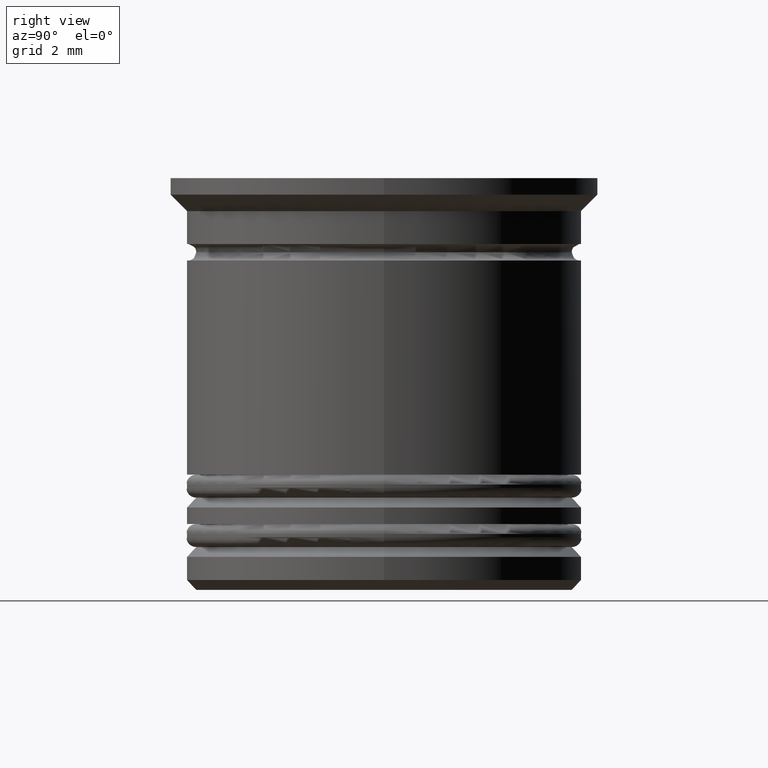
[diagram: clean part render]
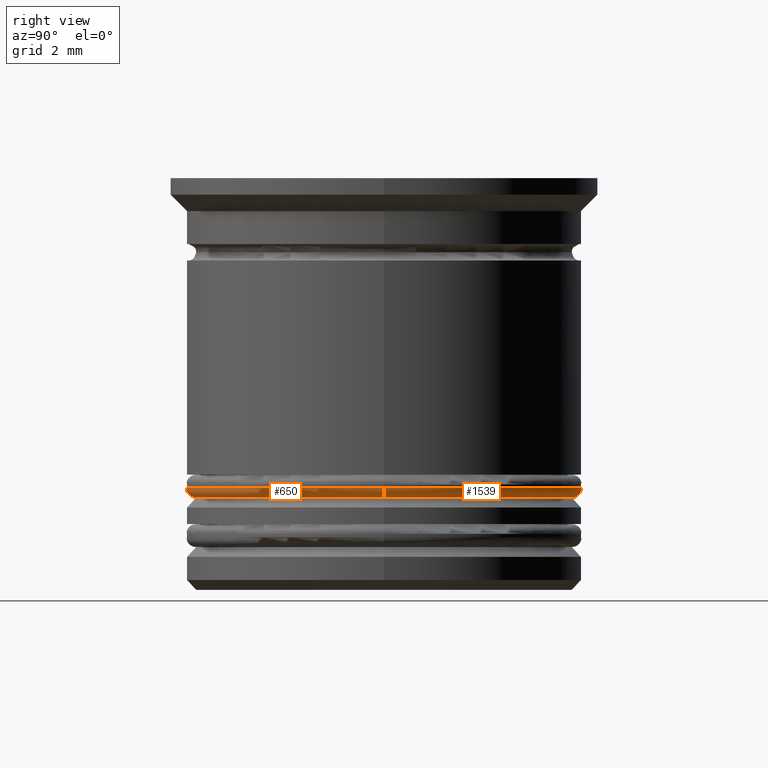
[diagram: same view with one multi-face feature highlighted, each face labeled with its STEP entity id]
A machine part, right view. The highlighted faces form ONE feature: a constant-radius fillet chain: 2 tangent blend faces with common blend radius 0.3 mm. The faces share edges in the B-rep.
Their STEP definitions:
[1] entity #1539 (Torus):
#36 = DIRECTION ( 'NONE',  ( 0.000000000000000000, 0.000000000000000000, -1.000000000000000000 ) ) ;
#83 = AXIS2_PLACEMENT_3D ( 'NONE', #1893, #1443, #679 ) ;
#119 = CIRCLE ( 'NONE', #1251, 5.700000000000002842 ) ;
#178 = CARTESIAN_POINT ( 'NONE',  ( 6.000000000000002665, 0.000000000000000000, -9.400000000000005684 ) ) ;
#191 = AXIS2_PLACEMENT_3D ( 'NONE', #1909, #1313, #36 ) ;
#253 = ORIENTED_EDGE ( 'NONE', *, *, #1435, .T. ) ;
#272 = EDGE_CURVE ( 'NONE', #1096, #541, #954, .T. ) ;
#303 = EDGE_LOOP ( 'NONE', ( #671, #253, #893, #568 ) ) ;
#321 = TOROIDAL_SURFACE ( 'NONE', #905, 5.700000000000002842, 0.2999999999999999889 ) ;
#365 = VERTEX_POINT ( 'NONE', #816 ) ;
#395 = DIRECTION ( 'NONE',  ( -0.000000000000000000, -0.000000000000000000, -1.000000000000000000 ) ) ;
#421 = DIRECTION ( 'NONE',  ( 0.000000000000000000, 0.000000000000000000, 1.000000000000000000 ) ) ;
#444 = VERTEX_POINT ( 'NONE', #1328 ) ;
#541 = VERTEX_POINT ( 'NONE', #1861 ) ;
#568 = ORIENTED_EDGE ( 'NONE', *, *, #1922, .F. ) ;
#660 = CARTESIAN_POINT ( 'NONE',  ( -5.700000000000002842, 6.980486755139916067E-16, -9.400000000000005684 ) ) ;
#671 = ORIENTED_EDGE ( 'NONE', *, *, #709, .F. ) ;
#679 = DIRECTION ( 'NONE',  ( 1.000000000000000000, 0.000000000000000000, 0.000000000000000000 ) ) ;
#709 = EDGE_CURVE ( 'NONE', #365, #444, #119, .T. ) ;
#719 = FACE_OUTER_BOUND ( 'NONE', #303, .T. ) ;
#816 = CARTESIAN_POINT ( 'NONE',  ( -5.700000000000002842, 7.164183775012019380E-16, -9.700000000000006395 ) ) ;
#870 = CIRCLE ( 'NONE', #1066, 0.2999999999999999334 ) ;
#893 = ORIENTED_EDGE ( 'NONE', *, *, #272, .F. ) ;
#905 = AXIS2_PLACEMENT_3D ( 'NONE', #1918, #421, #1948 ) ;
#954 = CIRCLE ( 'NONE', #83, 6.000000000000002665 ) ;
#1006 = DIRECTION ( 'NONE',  ( 1.000000000000000000, 0.000000000000000000, 0.000000000000000000 ) ) ;
#1066 = AXIS2_PLACEMENT_3D ( 'NONE', #660, #1134, #1872 ) ;
#1096 = VERTEX_POINT ( 'NONE', #178 ) ;
#1134 = DIRECTION ( 'NONE',  ( 1.224646799147353207E-16, 1.000000000000000000, -0.000000000000000000 ) ) ;
#1251 = AXIS2_PLACEMENT_3D ( 'NONE', #1468, #395, #1006 ) ;
#1313 = DIRECTION ( 'NONE',  ( 0.000000000000000000, -1.000000000000000000, 0.000000000000000000 ) ) ;
#1328 = CARTESIAN_POINT ( 'NONE',  ( 5.700000000000002842, 0.000000000000000000, -9.700000000000006395 ) ) ;
#1330 = CIRCLE ( 'NONE', #191, 0.2999999999999999334 ) ;
#1435 = EDGE_CURVE ( 'NONE', #365, #541, #870, .T. ) ;
#1443 = DIRECTION ( 'NONE',  ( 0.000000000000000000, 0.000000000000000000, 1.000000000000000000 ) ) ;
#1468 = CARTESIAN_POINT ( 'NONE',  ( 0.000000000000000000, 0.000000000000000000, -9.700000000000006395 ) ) ;
#1539 = ADVANCED_FACE ( 'NONE', ( #719 ), #321, .T. ) ;
#1861 = CARTESIAN_POINT ( 'NONE',  ( -6.000000000000002665, 7.347880794884122694E-16, -9.400000000000005684 ) ) ;
#1872 = DIRECTION ( 'NONE',  ( -1.000000000000000000, 1.224646799147353207E-16, 0.000000000000000000 ) ) ;
#1893 = CARTESIAN_POINT ( 'NONE',  ( 0.000000000000000000, 0.000000000000000000, -9.400000000000005684 ) ) ;
#1909 = CARTESIAN_POINT ( 'NONE',  ( 5.700000000000002842, 0.000000000000000000, -9.400000000000005684 ) ) ;
#1918 = CARTESIAN_POINT ( 'NONE',  ( 0.000000000000000000, 0.000000000000000000, -9.400000000000005684 ) ) ;
#1922 = EDGE_CURVE ( 'NONE', #444, #1096, #1330, .T. ) ;
#1948 = DIRECTION ( 'NONE',  ( 1.000000000000000000, 0.000000000000000000, 0.000000000000000000 ) ) ;
[2] entity #650 (Torus):
#36 = DIRECTION ( 'NONE',  ( 0.000000000000000000, 0.000000000000000000, -1.000000000000000000 ) ) ;
#124 = CIRCLE ( 'NONE', #1126, 5.700000000000002842 ) ;
#168 = DIRECTION ( 'NONE',  ( 1.000000000000000000, 0.000000000000000000, 0.000000000000000000 ) ) ;
#178 = CARTESIAN_POINT ( 'NONE',  ( 6.000000000000002665, 0.000000000000000000, -9.400000000000005684 ) ) ;
#191 = AXIS2_PLACEMENT_3D ( 'NONE', #1909, #1313, #36 ) ;
#216 = TOROIDAL_SURFACE ( 'NONE', #900, 5.700000000000002842, 0.2999999999999999889 ) ;
#279 = CARTESIAN_POINT ( 'NONE',  ( 0.000000000000000000, 0.000000000000000000, -9.400000000000005684 ) ) ;
#365 = VERTEX_POINT ( 'NONE', #816 ) ;
#425 = DIRECTION ( 'NONE',  ( 1.000000000000000000, 0.000000000000000000, 0.000000000000000000 ) ) ;
#444 = VERTEX_POINT ( 'NONE', #1328 ) ;
#470 = FACE_OUTER_BOUND ( 'NONE', #864, .T. ) ;
#477 = ORIENTED_EDGE ( 'NONE', *, *, #1252, .F. ) ;
#541 = VERTEX_POINT ( 'NONE', #1861 ) ;
#576 = DIRECTION ( 'NONE',  ( 1.000000000000000000, 0.000000000000000000, 0.000000000000000000 ) ) ;
#650 = ADVANCED_FACE ( 'NONE', ( #470 ), #216, .T. ) ;
#660 = CARTESIAN_POINT ( 'NONE',  ( -5.700000000000002842, 6.980486755139916067E-16, -9.400000000000005684 ) ) ;
#747 = DIRECTION ( 'NONE',  ( 0.000000000000000000, 0.000000000000000000, 1.000000000000000000 ) ) ;
#816 = CARTESIAN_POINT ( 'NONE',  ( -5.700000000000002842, 7.164183775012019380E-16, -9.700000000000006395 ) ) ;
#839 = AXIS2_PLACEMENT_3D ( 'NONE', #279, #747, #425 ) ;
#864 = EDGE_LOOP ( 'NONE', ( #1276, #972, #1149, #477 ) ) ;
#870 = CIRCLE ( 'NONE', #1066, 0.2999999999999999334 ) ;
#900 = AXIS2_PLACEMENT_3D ( 'NONE', #1087, #1563, #168 ) ;
#972 = ORIENTED_EDGE ( 'NONE', *, *, #1347, .F. ) ;
#994 = CIRCLE ( 'NONE', #839, 6.000000000000002665 ) ;
#1066 = AXIS2_PLACEMENT_3D ( 'NONE', #660, #1134, #1872 ) ;
#1087 = CARTESIAN_POINT ( 'NONE',  ( 0.000000000000000000, 0.000000000000000000, -9.400000000000005684 ) ) ;
#1096 = VERTEX_POINT ( 'NONE', #178 ) ;
#1126 = AXIS2_PLACEMENT_3D ( 'NONE', #1343, #1941, #576 ) ;
#1134 = DIRECTION ( 'NONE',  ( 1.224646799147353207E-16, 1.000000000000000000, -0.000000000000000000 ) ) ;
#1149 = ORIENTED_EDGE ( 'NONE', *, *, #1922, .T. ) ;
#1252 = EDGE_CURVE ( 'NONE', #541, #1096, #994, .T. ) ;
#1276 = ORIENTED_EDGE ( 'NONE', *, *, #1435, .F. ) ;
#1313 = DIRECTION ( 'NONE',  ( 0.000000000000000000, -1.000000000000000000, 0.000000000000000000 ) ) ;
#1328 = CARTESIAN_POINT ( 'NONE',  ( 5.700000000000002842, 0.000000000000000000, -9.700000000000006395 ) ) ;
#1330 = CIRCLE ( 'NONE', #191, 0.2999999999999999334 ) ;
#1343 = CARTESIAN_POINT ( 'NONE',  ( 0.000000000000000000, 0.000000000000000000, -9.700000000000006395 ) ) ;
#1347 = EDGE_CURVE ( 'NONE', #444, #365, #124, .T. ) ;
#1435 = EDGE_CURVE ( 'NONE', #365, #541, #870, .T. ) ;
#1563 = DIRECTION ( 'NONE',  ( 0.000000000000000000, 0.000000000000000000, 1.000000000000000000 ) ) ;
#1861 = CARTESIAN_POINT ( 'NONE',  ( -6.000000000000002665, 7.347880794884122694E-16, -9.400000000000005684 ) ) ;
#1872 = DIRECTION ( 'NONE',  ( -1.000000000000000000, 1.224646799147353207E-16, 0.000000000000000000 ) ) ;
#1909 = CARTESIAN_POINT ( 'NONE',  ( 5.700000000000002842, 0.000000000000000000, -9.400000000000005684 ) ) ;
#1922 = EDGE_CURVE ( 'NONE', #444, #1096, #1330, .T. ) ;
#1941 = DIRECTION ( 'NONE',  ( -0.000000000000000000, -0.000000000000000000, -1.000000000000000000 ) ) ;